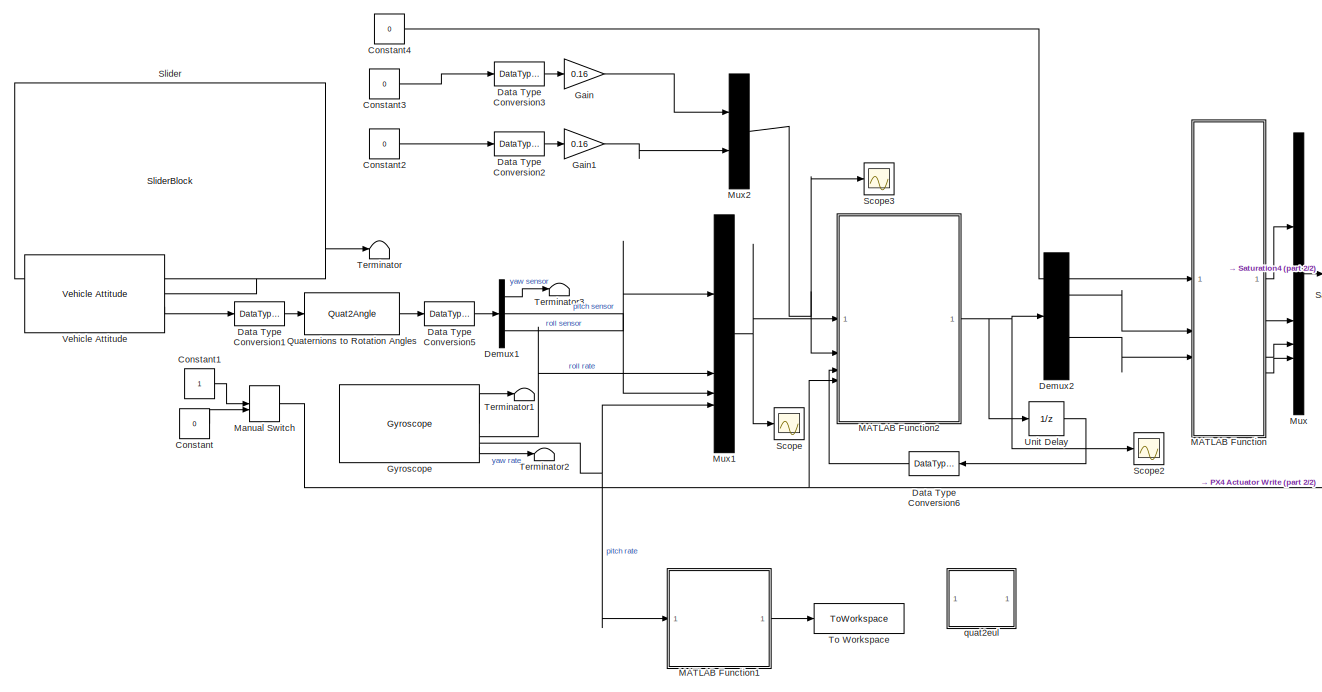
[diagram: root canvas - part 1/2, most of the canvas]
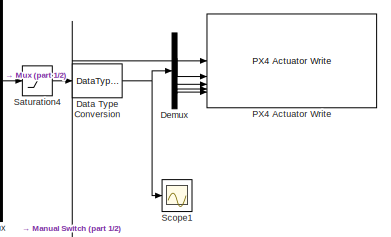
[diagram: root canvas - part 2/2, middle right region]
MODEL slx_2ba3fab895f1
KIND model
CONFIG AbsTol = auto
CONFIG EnableMultiTasking = on
CONFIG FixedStep = 0.015
CONFIG MaxStep = auto
CONFIG MinStep = auto
CONFIG RelTol = 1e-3
CONFIG SampleTimeConstraint = Unconstrained
CONFIG SolverName = FixedStepAuto
CONFIG StartTime = 0.0
CONFIG StopTime = inf
BLOCK [Constant] Constant
  OutDataTypeStr = boolean
  Value = 0
BLOCK [Constant] Constant1
  OutDataTypeStr = boolean
BLOCK [Constant] Constant2
  Value = 0
BLOCK [Constant] Constant3
  Value = 0
BLOCK [Constant] Constant4
  Value = 0
BLOCK [DataTypeConversion] Data Type Conversion
  OutDataTypeStr = single
  RndMeth = Floor
  SaturateOnIntegerOverflow = off
BLOCK [DataTypeConversion] Data Type Conversion1
  OutDataTypeStr = double
  RndMeth = Floor
  SaturateOnIntegerOverflow = off
BLOCK [DataTypeConversion] Data Type Conversion2
  OutDataTypeStr = single
  RndMeth = Floor
  SaturateOnIntegerOverflow = off
BLOCK [DataTypeConversion] Data Type Conversion3
  OutDataTypeStr = single
  RndMeth = Floor
  SaturateOnIntegerOverflow = off
BLOCK [DataTypeConversion] Data Type Conversion5
  OutDataTypeStr = single
  RndMeth = Floor
  SaturateOnIntegerOverflow = off
BLOCK [DataTypeConversion] Data Type Conversion6
  OutDataTypeStr = single
  RndMeth = Floor
  SaturateOnIntegerOverflow = off
BLOCK [Demux] Demux
BLOCK [Demux] Demux1
  Outputs = 3
BLOCK [Demux] Demux2
  Outputs = 2
BLOCK [Gain] Gain
  Gain = 0.16
BLOCK [Gain] Gain1
  Gain = 0.16
BLOCK [Reference] Gyroscope  REF=px4Sensorslib/Gyroscope
  SourceBlock = px4Sensorslib/Gyroscope
  SourceType = PX4 Gyroscope
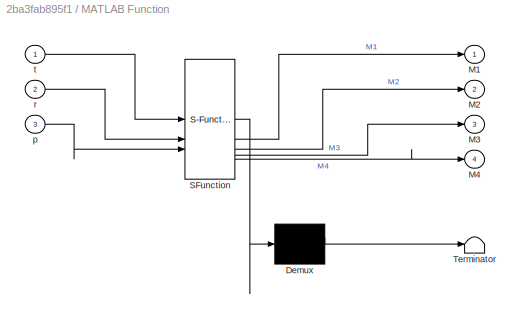
BLOCK [SubSystem] MATLAB Function
  ErrorFcn = Stateflow.Translate.translate
  PermitHierarchicalResolution = ExplicitOnly
  SFBlockType = MATLAB Function
  TreatAsAtomicUnit = on
BLOCK [Demux] MATLAB Function/ Demux 
  Outputs = 1
BLOCK [S-Function] MATLAB Function/ SFunction 
  EnableBusSupport = off
  FunctionName = sf_sfun
  PortCounts = [3 5]
  SFcnIsStateOwnerBlock = off
  SFunctionDeploymentMode = off
  Tag = Stateflow S-Function 2
BLOCK [Terminator] MATLAB Function/ Terminator 
BLOCK [Outport] MATLAB Function/M1
BLOCK [Outport] MATLAB Function/M2
  Port = 2
BLOCK [Outport] MATLAB Function/M3
  Port = 3
BLOCK [Outport] MATLAB Function/M4
  Port = 4
BLOCK [Inport] MATLAB Function/p
  Port = 3
BLOCK [Inport] MATLAB Function/r
  Port = 2
BLOCK [Inport] MATLAB Function/t
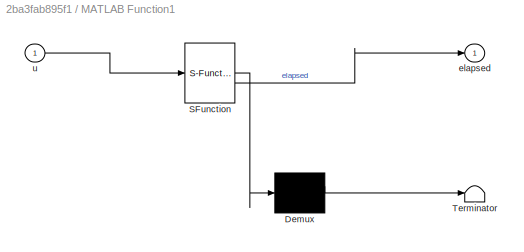
BLOCK [SubSystem] MATLAB Function1
  ErrorFcn = Stateflow.Translate.translate
  PermitHierarchicalResolution = ExplicitOnly
  SFBlockType = MATLAB Function
  TreatAsAtomicUnit = on
BLOCK [Demux] MATLAB Function1/ Demux 
  Outputs = 1
BLOCK [S-Function] MATLAB Function1/ SFunction 
  EnableBusSupport = off
  FunctionName = sf_sfun
  PortCounts = [1 2]
  SFcnIsStateOwnerBlock = off
  SFunctionDeploymentMode = off
  Tag = Stateflow S-Function 1
BLOCK [Terminator] MATLAB Function1/ Terminator 
BLOCK [Outport] MATLAB Function1/elapsed
  VectorParamsAs1DForOutWhenUnconnected = off
BLOCK [Inport] MATLAB Function1/u
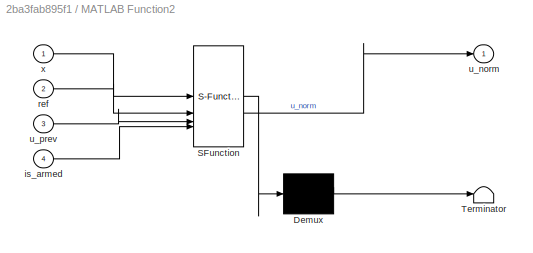
BLOCK [SubSystem] MATLAB Function2
  ErrorFcn = Stateflow.Translate.translate
  PermitHierarchicalResolution = ExplicitOnly
  SFBlockType = MATLAB Function
  TreatAsAtomicUnit = on
BLOCK [Demux] MATLAB Function2/ Demux 
  Outputs = 1
BLOCK [S-Function] MATLAB Function2/ SFunction 
  EnableBusSupport = off
  FunctionName = sf_sfun
  PortCounts = [4 2]
  SFcnIsStateOwnerBlock = off
  SFunctionDeploymentMode = off
  Tag = Stateflow S-Function 3
BLOCK [Terminator] MATLAB Function2/ Terminator 
BLOCK [Inport] MATLAB Function2/is_armed
  Port = 4
BLOCK [Inport] MATLAB Function2/ref
  Port = 2
BLOCK [Outport] MATLAB Function2/u_norm
  VectorParamsAs1DForOutWhenUnconnected = off
BLOCK [Inport] MATLAB Function2/u_prev
  Port = 3
BLOCK [Inport] MATLAB Function2/x
BLOCK [ManualSwitch] Manual Switch
  CurrentSetting = 0
BLOCK [Mux] Mux
  DisplayOption = bar
BLOCK [Mux] Mux1
  DisplayOption = bar
BLOCK [Mux] Mux2
  DisplayOption = bar
  Inputs = 2
BLOCK [Reference] PX4 Actuator Write  REF=px4Peripheralslib/PX4 Actuator Write
  SourceBlock = px4Peripheralslib/PX4 Actuator Write
  SourceType = px4.internal.block.PX4Actuators
BLOCK [Quat2Angle] Quaternions to Rotation Angles
  AttributesFormatString = Rotation Order: %<rotationOrder>
BLOCK [Saturate] Saturation4
  LowerLimit = 0
  UpperLimit = 1
BLOCK [Scope] Scope
  ActiveDisplayYMaximum = 3.8255419731140137
  ActiveDisplayYMinimum = -1.9109067916870117
  Floating = off
  GraphicalSettings = {"AxesScalingProperties":{"AlignXAxis":"Center","AlignYAxis":"Center","AutoScaleXAxisLimits":false,"AxesScaling":"Manual","AxesScalingNumUpdates":10,"ExpandOnly":true,"ScaleAxesLimitsAtStop":false,"XAxisDataRange":100,"YAxisDataRange":80},"DisplayProperties":{"ColorOrder":["auto","auto","auto","auto","auto","auto","auto","auto","auto","auto","auto","auto","auto","auto","auto","auto","auto","auto",...<+2389ch>
  MultipleDisplayCache = [{"MaxYLimMag":3.8255419731140137,"MaxYLimReal":3.8255419731140137,"MinYLimMag":0,"MinYLimReal":-1.9109067916870117,"PlotAsMagnitudePhase":false,"ShowGrid":true,"ShowLegend":false,"Title":"%<SignalLabel>","YLabel":""}]
  NumInputPorts = 1
  ScopeFrameLocation = window
  WasSavedAsWebScope = on
  WindowPosition = [680.000000,330.000000,560.000000,420.000000,]
BLOCK [Scope] Scope1
  ActiveDisplayYMaximum = 2.19156354528468
  ActiveDisplayYMinimum = -1.9221124811650505
  ContainerLayout = {"WindowBounds":[537,112,1296,809],"gridDimensions":{"w":1,"h":1},"tileCount":1,"tileCoverage":1,"columnWeights":1,"rowWeights":1,"tileOccupancy":{"children":[{"id":"/Scope1"},{"id":"/Scope2"}]}}
  DataLoggingVariableName = ScopeData3
  Floating = off
  GraphicalSettings = {"Style":{"BackgroundColor":[0.12941176470588237,0.12941176470588237,0.12941176470588237],"AxesColor":[0.07058823529411765,0.07058823529411765,0.07058823529411765],"LabelsColor":[0.8509803921568627,0.8509803921568627,0.8509803921568627],"PreserveColors":false,"Visible":[true,true,true,true],"LineStyle":["-","-","-","-"],"LineWidth":[1.5,1.5,1.5,1.5],"BarWidth":[0.9,0.9,0.9,0.9],"LineColor":["auto"...<+2432ch>
  MultipleDisplayCache = [{"MaxYLimMag":1.125,"MaxYLimReal":2.19156354528468,"MinYLimMag":0,"MinYLimReal":-1.9221124811650505,"PlotAsMagnitudePhase":false,"ShowGrid":true,"ShowLegend":true,"Title":"%<SignalLabel>","YLabel":""}]
  NumInputPorts = 1
  ScopeFrameLocation = container
  ShowLegend = on
  Visible = on
  WasSavedAsWebScope = on
  WindowPosition = [546.000000,168.000000,1280.000000,770.000000,]
BLOCK [Scope] Scope2
  ActiveDisplayYMaximum = 1.3022961290231061
  ActiveDisplayYMinimum = -0.36091258117677238
  ContainerLayout = {"WindowBounds":[537,112,1296,809],"gridDimensions":{"w":1,"h":1},"tileCount":1,"tileCoverage":1,"columnWeights":1,"rowWeights":1,"tileOccupancy":{"children":[{"id":"/Scope1"},{"id":"/Scope2"}]}}
  DataLoggingVariableName = ScopeData1
  Floating = off
  GraphicalSettings = {"AxesScalingProperties":{"AlignXAxis":"Center","AlignYAxis":"Center","AutoScaleXAxisLimits":false,"AxesScaling":"Manual","AxesScalingNumUpdates":10,"ExpandOnly":true,"ScaleAxesLimitsAtStop":false,"XAxisDataRange":100,"YAxisDataRange":80},"DisplayProperties":{"ColorOrder":["auto","auto","auto","auto","auto","auto","auto","auto","auto","auto","auto","auto","auto","auto","auto","auto","auto","auto",...<+2145ch>
  MultipleDisplayCache = [{"MaxYLimMag":0.6,"MaxYLimReal":1.3022961290231061,"MinYLimMag":0.4,"MinYLimReal":-0.36091258117677238,"PlotAsMagnitudePhase":false,"ShowGrid":true,"ShowLegend":false,"Title":"%<SignalLabel>","YLabel":""}]
  NumInputPorts = 1
  ScopeFrameLocation = container
  Visible = on
  WasSavedAsWebScope = on
  WindowPosition = [546.000000,168.000000,1280.000000,770.000000,]
BLOCK [Scope] Scope3
  ActiveDisplayYMaximum = 1
  ActiveDisplayYMinimum = -1
  DataLoggingVariableName = ScopeData2
  Floating = off
  GraphicalSettings = {"Style":{"BackgroundColor":[0.12941176470588237,0.12941176470588237,0.12941176470588237],"AxesColor":[0.07058823529411765,0.07058823529411765,0.07058823529411765],"LabelsColor":[0.8509803921568627,0.8509803921568627,0.8509803921568627],"PreserveColors":false,"Visible":[true,true,true],"LineStyle":["-","-","-"],"LineWidth":[1.5,1.5,1.5],"BarWidth":[0.9,0.9,0.9],"LineColor":["auto","auto","auto"],"...<+2108ch>
  MultipleDisplayCache = [{"MaxYLimMag":1,"MaxYLimReal":1,"MinYLimMag":0,"MinYLimReal":-1,"PlotAsMagnitudePhase":false,"ShowGrid":true,"ShowLegend":false,"Title":"%<SignalLabel>","YLabel":""}]
  NumInputPorts = 1
  ScopeFrameLocation = window
  WasSavedAsWebScope = on
  WindowPosition = [680.000000,330.000000,560.000000,420.000000,]
BLOCK [SliderBlock] Slider
  ScaleMax = 1
BLOCK [Terminator] Terminator
BLOCK [Terminator] Terminator1
BLOCK [Terminator] Terminator2
BLOCK [Terminator] Terminator3
BLOCK [ToWorkspace] To Workspace
  FixptAsFi = on
  MaxDataPoints = inf
  SampleTime = -1
  SaveFormat = Timeseries
  VariableName = tiempo
BLOCK [UnitDelay] Unit Delay
  HasFrameUpgradeWarning = on
  SampleTime = -1
BLOCK [Reference] Vehicle Attitude  REF=px4Sensorslib/Vehicle Attitude
  SourceBlock = px4Sensorslib/Vehicle Attitude
  SourceType = PX4 Vehicle Attitude
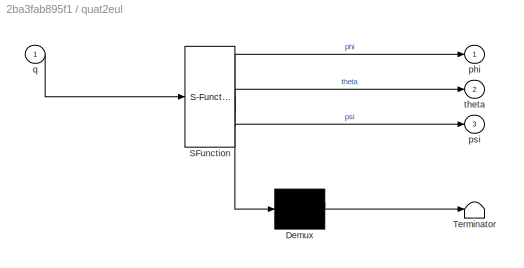
BLOCK [SubSystem] quat2eul
  Commented = on
  ErrorFcn = Stateflow.Translate.translate
  PermitHierarchicalResolution = ExplicitOnly
  SFBlockType = MATLAB Function
  TreatAsAtomicUnit = on
BLOCK [Demux] quat2eul/ Demux 
  Outputs = 1
BLOCK [S-Function] quat2eul/ SFunction 
  EnableBusSupport = off
  FunctionName = sf_sfun
  PortCounts = [1 4]
  SFcnIsStateOwnerBlock = off
  SFunctionDeploymentMode = off
  Tag = Stateflow S-Function 10
BLOCK [Terminator] quat2eul/ Terminator 
BLOCK [Outport] quat2eul/phi
  VectorParamsAs1DForOutWhenUnconnected = off
BLOCK [Outport] quat2eul/psi
  Port = 3
  VectorParamsAs1DForOutWhenUnconnected = off
BLOCK [Inport] quat2eul/q
BLOCK [Outport] quat2eul/theta
  Port = 2
  VectorParamsAs1DForOutWhenUnconnected = off
LINE Constant1:1 -> Manual Switch:1
LINE Constant2:1 -> Data Type Conversion2:1
LINE Constant3:1 -> Data Type Conversion3:1
LINE Constant4:1 -> MATLAB Function:1
LINE Constant:1 -> Manual Switch:2
LINE Data Type Conversion1:1 -> Quaternions to Rotation Angles:1
LINE Data Type Conversion2:1 -> Gain1:1
LINE Data Type Conversion3:1 -> Gain:1
LINE Data Type Conversion5:1 -> Demux1:1
LINE Data Type Conversion6:1 -> MATLAB Function2:3
NET Data Type Conversion:1 -> Demux:1, Scope1:1
LINE Demux1:1 -> Terminator3:1
LINE Demux1:2 -> Mux1:3
LINE Demux1:3 -> Mux1:1
LINE Demux2:1 -> MATLAB Function:2
LINE Demux2:2 -> MATLAB Function:3
LINE Demux:1 -> PX4 Actuator Write:2
LINE Demux:2 -> PX4 Actuator Write:3
LINE Demux:3 -> PX4 Actuator Write:4
LINE Demux:4 -> PX4 Actuator Write:5
LINE Gain1:1 -> Mux2:2
LINE Gain:1 -> Mux2:1
LINE Gyroscope:1 -> Terminator1:1
LINE Gyroscope:2 -> Mux1:2
NET Gyroscope:3 -> MATLAB Function1:1, Mux1:4
LINE Gyroscope:4 -> Terminator2:1
LINE MATLAB Function1:1 -> To Workspace:1
NET MATLAB Function2:1 -> Demux2:1, Scope2:1, Unit Delay:1
LINE MATLAB Function:1 -> Mux:1
LINE MATLAB Function:2 -> Mux:2
LINE MATLAB Function:3 -> Mux:3
LINE MATLAB Function:4 -> Mux:4
NET Manual Switch:1 -> MATLAB Function2:4, PX4 Actuator Write:1
NET Mux1:1 -> MATLAB Function2:1, Scope:1
NET Mux2:1 -> MATLAB Function2:2, Scope3:1
LINE Mux:1 -> Saturation4:1
LINE Quaternions to Rotation Angles:1 -> Data Type Conversion5:1
LINE Saturation4:1 -> Data Type Conversion:1
LINE Unit Delay:1 -> Data Type Conversion6:1
LINE Vehicle Attitude:1 -> Terminator:1
LINE Vehicle Attitude:2 -> Data Type Conversion1:1
note: NET lines group one-source signal fan-out (src -> all destinations, sorted); 1:1 wires keep LINE
CHART MATLAB Function1 states=1 transitions=1
  STATE_LABEL 'eML_blk_kernel()'
  STATE_LABEL "SCRIPT:\nfunction elapsed = measureTime(u)\n% u: entrada dummy para forzar ejecución por step\n%#codegen\n\nelapsed = 0.0;   %  tipo fijo (double escalar)\n\ncoder.extrinsic('tic','toc')\n\npersistent tStart\nif isempty(tStart)\n    tStart = tic;\nend\n\nelapsed = toc(tStart);\ntStart = tic;"
CHART MATLAB Function states=1 transitions=1
  STATE_LABEL 'eML_blk_kernel()'
  STATE_LABEL 'SCRIPT:\nfunction [M1,M2,M3,M4]  = fcn(t,r, p)\nM1 = t - 0.707107*r + 0.707107*p;\nM2 = t + 0.707107*r - 0.707107*p;\nM3 = t + 0.707107*r + 0.707107*p;\nM4 = t - 0.707107*r - 0.707107*p;'
CHART MATLAB Function2 states=1 transitions=1
  STATE_LABEL 'eML_blk_kernel()'
  STATE_LABEL 'SCRIPT:\nfunction u_norm = MPC_Eolo_V2806_SoftStart(x, ref, u_prev, is_armed)\n    persistent Ad Bd Cd F Phi H_inv x_old Nc Np m n_aug x_filt Q_total\n    \n    Ts = single(0.015);  \n    Np_val = 10; \n    Nc_val = 2; \n    n_s = 4; \n    m_in = 2; \n    q_out = 2; \n    \n    if isempty(Ad)\n        Np = Np_val; Nc = Nc_val;\n        m = m_in; q = q_out;\n        Ixx = single(0.048); Iyy = single(0.048); \n   ...<+2532ch>'
CHART quat2eul states=1 transitions=1
  STATE_LABEL 'eML_blk_kernel()'
  STATE_LABEL 'SCRIPT:\nfunction [phi,theta,psi] = quat2eul(q)\n\n% Quaternion conversion to Euler angles based on the PX4 Firmware v1.10.2\n% release.\n\nphi = atan2(2*(q(1)*q(2) + q(3)* q(4)), q(1)^2 - q(2)^2 - q(3)^2 + q(4)^2);\ntheta = asin(-2*(q(2)*q(4) - q(1)*q(3)));\npsi = atan2(2*(q(2)*q(3) + q(1)* q(4)), q(1)^2 + q(2)^2 - q(3)^2 - q(4)^2);\nend'
CHART  states=0 transitions=0
CHART  states=0 transitions=0
CHART  states=0 transitions=0
CHART  states=0 transitions=0
